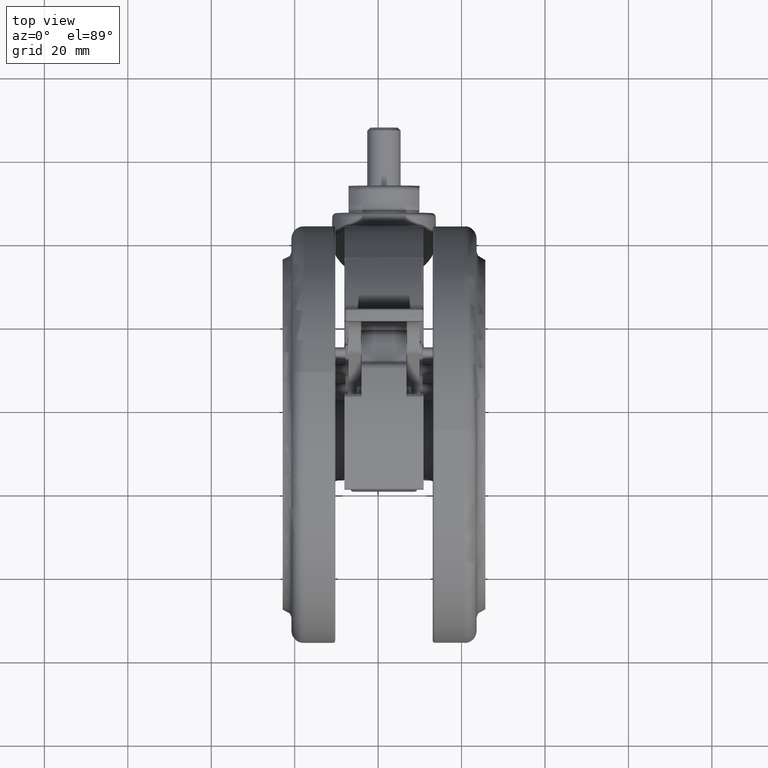
[diagram: clean part render]
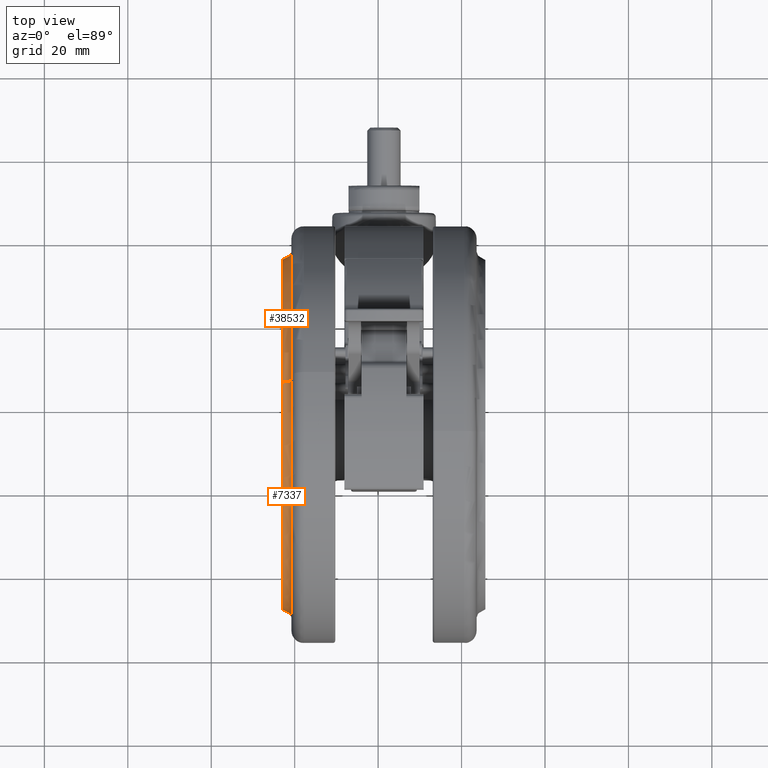
[diagram: same view with one multi-face feature highlighted, each face labeled with its STEP entity id]
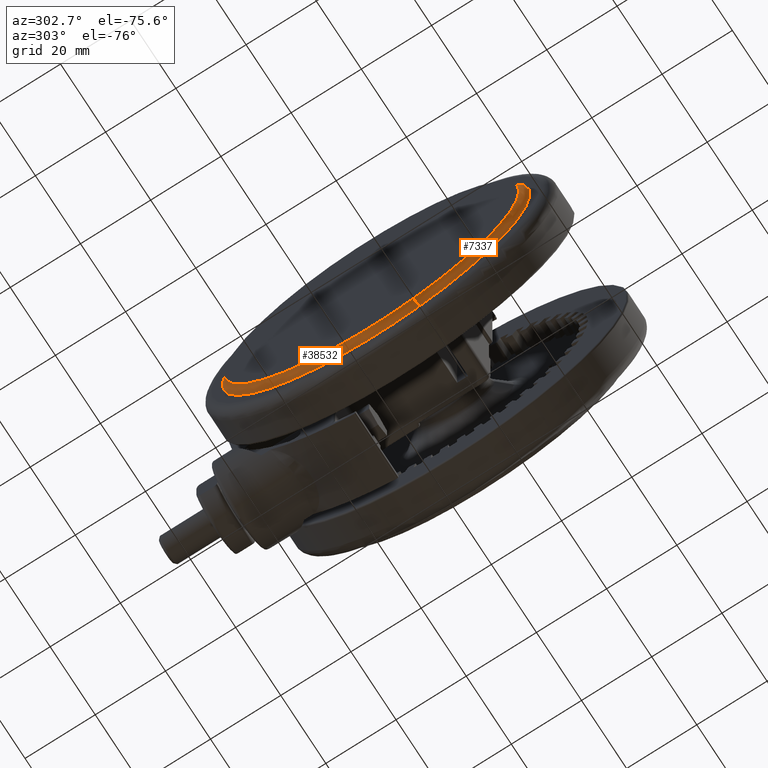
[diagram: same view with one multi-face feature highlighted, each face labeled with its STEP entity id]
A machine part, top view. The highlighted faces form ONE feature: a constant-radius fillet chain: 2 tangent blend faces with common blend radius 2.0507 mm. The faces share edges in the B-rep.
A second angle (auxiliary view) of the same feature is appended — it is thin or edge-on in the first view.
Their STEP definitions:
[1] entity #7337 (Torus):
#326 = AXIS2_PLACEMENT_3D ( 'NONE', #10751, #37212, #14538 ) ;
#922 = DIRECTION ( 'NONE',  ( 0.9587657712597810200, -0.2841974592789973700, 3.017487239981050200E-017 ) ) ;
#1682 = CARTESIAN_POINT ( 'NONE',  ( -40.26746124717187300, 11.93608545601796900, -48.54523809523794100 ) ) ;
#2512 = AXIS2_PLACEMENT_3D ( 'NONE', #10464, #36928, #14238 ) ;
#4075 = CARTESIAN_POINT ( 'NONE',  ( 42.23363222399335400, -12.51889808123984000, -48.54523809523794100 ) ) ;
#7337 = ADVANCED_FACE ( 'NONE', ( #26326 ), #45140, .F. ) ;
#7916 = DIRECTION ( 'NONE',  ( -0.9587657712597809100, 0.2841974592789977000, 0.0000000000000000000 ) ) ;
#8022 = ORIENTED_EDGE ( 'NONE', *, *, #42979, .F. ) ;
#8320 = VERTEX_POINT ( 'NONE', #12066 ) ;
#8492 = CIRCLE ( 'NONE', #42558, 2.050731300344617900 ) ;
#9405 = EDGE_CURVE ( 'NONE', #29082, #22419, #9814, .T. ) ;
#9573 = ORIENTED_EDGE ( 'NONE', *, *, #23197, .T. ) ;
#9814 = CIRCLE ( 'NONE', #29207, 43.81162395321010900 ) ;
#10054 = VERTEX_POINT ( 'NONE', #1682 ) ;
#10464 = CARTESIAN_POINT ( 'NONE',  ( 1.851304162411314400E-018, -7.794195715109633000E-015, -48.54523809523794100 ) ) ;
#10751 = CARTESIAN_POINT ( 'NONE',  ( -42.23363222399335400, 12.51889808123982200, -48.54523809523794100 ) ) ;
#10759 = ORIENTED_EDGE ( 'NONE', *, *, #9405, .T. ) ;
#12066 = CARTESIAN_POINT ( 'NONE',  ( 40.26746124717187300, -11.93608545601798300, -48.54523809523794100 ) ) ;
#14031 = EDGE_CURVE ( 'NONE', #10054, #8320, #37833, .T. ) ;
#14238 = DIRECTION ( 'NONE',  ( 0.0000000000000000000, 1.000000000000000000, -1.652146363197072600E-016 ) ) ;
#14538 = DIRECTION ( 'NONE',  ( 0.9587657712597809100, -0.2841974592789977000, 0.0000000000000000000 ) ) ;
#15838 = CARTESIAN_POINT ( 'NONE',  ( -42.00508542959794100, 12.45115221437581200, -46.50840827257597700 ) ) ;
#18904 = CARTESIAN_POINT ( 'NONE',  ( 7.070923642777736900E-017, -7.345635376610745900E-015, -46.50840827257597700 ) ) ;
#18932 = AXIS2_PLACEMENT_3D ( 'NONE', #23590, #46105, #922 ) ;
#19894 = CARTESIAN_POINT ( 'NONE',  ( 42.00508542959794100, -12.45115221437582600, -46.50840827257597700 ) ) ;
#22419 = VERTEX_POINT ( 'NONE', #19894 ) ;
#22756 = DIRECTION ( 'NONE',  ( 0.9587657712597809100, -0.2841974592789973100, 0.0000000000000000000 ) ) ;
#23197 = EDGE_CURVE ( 'NONE', #10054, #29082, #48953, .T. ) ;
#23590 = CARTESIAN_POINT ( 'NONE',  ( 1.851304162411305900E-018, -7.794195715109633000E-015, -48.54523809523794100 ) ) ;
#26326 = FACE_OUTER_BOUND ( 'NONE', #31690, .T. ) ;
#27438 = ORIENTED_EDGE ( 'NONE', *, *, #14031, .F. ) ;
#29082 = VERTEX_POINT ( 'NONE', #15838 ) ;
#29207 = AXIS2_PLACEMENT_3D ( 'NONE', #18904, #45260, #22756 ) ;
#30585 = DIRECTION ( 'NONE',  ( 0.2841974592789973700, 0.9587657712597810200, -2.207516520505498100E-016 ) ) ;
#31690 = EDGE_LOOP ( 'NONE', ( #27438, #9573, #10759, #8022 ) ) ;
#36928 = DIRECTION ( 'NONE',  ( -3.380642383533773200E-017, -2.202247500052102700E-016, -1.000000000000000000 ) ) ;
#37212 = DIRECTION ( 'NONE',  ( -0.2841974592789972600, -0.9587657712597810200, 2.207516520505497900E-016 ) ) ;
#37833 = CIRCLE ( 'NONE', #2512, 41.99926869965538100 ) ;
#42558 = AXIS2_PLACEMENT_3D ( 'NONE', #4075, #30585, #7916 ) ;
#42979 = EDGE_CURVE ( 'NONE', #8320, #22419, #8492, .T. ) ;
#45140 = TOROIDAL_SURFACE ( 'NONE', #18932, 44.04999999999999700, 2.050731300344620100 ) ;
#45260 = DIRECTION ( 'NONE',  ( -3.380642383533773200E-017, -2.202247500052102700E-016, -1.000000000000000000 ) ) ;
#46105 = DIRECTION ( 'NONE',  ( -3.380642383533773200E-017, -2.202247500052102700E-016, -1.000000000000000000 ) ) ;
#48953 = CIRCLE ( 'NONE', #326, 2.050731300344617900 ) ;
[2] entity #38532 (Torus):
#71 = DIRECTION ( 'NONE',  ( 0.0000000000000000000, 1.000000000000000000, -1.652146363197072600E-016 ) ) ;
#326 = AXIS2_PLACEMENT_3D ( 'NONE', #10751, #37212, #14538 ) ;
#628 = EDGE_CURVE ( 'NONE', #22419, #29082, #31427, .T. ) ;
#1682 = CARTESIAN_POINT ( 'NONE',  ( -40.26746124717187300, 11.93608545601796900, -48.54523809523794100 ) ) ;
#4075 = CARTESIAN_POINT ( 'NONE',  ( 42.23363222399335400, -12.51889808123984000, -48.54523809523794100 ) ) ;
#7916 = DIRECTION ( 'NONE',  ( -0.9587657712597809100, 0.2841974592789977000, 0.0000000000000000000 ) ) ;
#8320 = VERTEX_POINT ( 'NONE', #12066 ) ;
#8492 = CIRCLE ( 'NONE', #42558, 2.050731300344617900 ) ;
#10054 = VERTEX_POINT ( 'NONE', #1682 ) ;
#10751 = CARTESIAN_POINT ( 'NONE',  ( -42.23363222399335400, 12.51889808123982200, -48.54523809523794100 ) ) ;
#10922 = FACE_OUTER_BOUND ( 'NONE', #37498, .T. ) ;
#12066 = CARTESIAN_POINT ( 'NONE',  ( 40.26746124717187300, -11.93608545601798300, -48.54523809523794100 ) ) ;
#14538 = DIRECTION ( 'NONE',  ( 0.9587657712597809100, -0.2841974592789977000, 0.0000000000000000000 ) ) ;
#14777 = CARTESIAN_POINT ( 'NONE',  ( 1.851304162411305900E-018, -7.794195715109633000E-015, -48.54523809523794100 ) ) ;
#15838 = CARTESIAN_POINT ( 'NONE',  ( -42.00508542959794100, 12.45115221437581200, -46.50840827257597700 ) ) ;
#17050 = EDGE_CURVE ( 'NONE', #8320, #10054, #35002, .T. ) ;
#18373 = AXIS2_PLACEMENT_3D ( 'NONE', #40178, #25804, #28586 ) ;
#19894 = CARTESIAN_POINT ( 'NONE',  ( 42.00508542959794100, -12.45115221437582600, -46.50840827257597700 ) ) ;
#22247 = DIRECTION ( 'NONE',  ( -3.380642383533773200E-017, -2.202247500052102700E-016, -1.000000000000000000 ) ) ;
#22419 = VERTEX_POINT ( 'NONE', #19894 ) ;
#22742 = DIRECTION ( 'NONE',  ( -3.380642383533773200E-017, -2.202247500052102700E-016, -1.000000000000000000 ) ) ;
#23197 = EDGE_CURVE ( 'NONE', #10054, #29082, #48953, .T. ) ;
#24147 = ORIENTED_EDGE ( 'NONE', *, *, #42979, .T. ) ;
#24267 = ORIENTED_EDGE ( 'NONE', *, *, #17050, .F. ) ;
#25804 = DIRECTION ( 'NONE',  ( -3.380642383533773200E-017, -2.202247500052102700E-016, -1.000000000000000000 ) ) ;
#28586 = DIRECTION ( 'NONE',  ( 0.9587657712597809100, -0.2841974592789973100, 0.0000000000000000000 ) ) ;
#29082 = VERTEX_POINT ( 'NONE', #15838 ) ;
#30585 = DIRECTION ( 'NONE',  ( 0.2841974592789973700, 0.9587657712597810200, -2.207516520505498100E-016 ) ) ;
#31063 = TOROIDAL_SURFACE ( 'NONE', #36785, 44.04999999999999700, 2.050731300344620100 ) ;
#31427 = CIRCLE ( 'NONE', #18373, 43.81162395321010900 ) ;
#35002 = CIRCLE ( 'NONE', #45910, 41.99926869965538100 ) ;
#36785 = AXIS2_PLACEMENT_3D ( 'NONE', #14777, #22247, #44930 ) ;
#37212 = DIRECTION ( 'NONE',  ( -0.2841974592789972600, -0.9587657712597810200, 2.207516520505497900E-016 ) ) ;
#37498 = EDGE_LOOP ( 'NONE', ( #24267, #24147, #42377, #40300 ) ) ;
#38532 = ADVANCED_FACE ( 'NONE', ( #10922 ), #31063, .F. ) ;
#40178 = CARTESIAN_POINT ( 'NONE',  ( 7.070923642777736900E-017, -7.345635376610745900E-015, -46.50840827257597700 ) ) ;
#40300 = ORIENTED_EDGE ( 'NONE', *, *, #23197, .F. ) ;
#42377 = ORIENTED_EDGE ( 'NONE', *, *, #628, .T. ) ;
#42558 = AXIS2_PLACEMENT_3D ( 'NONE', #4075, #30585, #7916 ) ;
#42979 = EDGE_CURVE ( 'NONE', #8320, #22419, #8492, .T. ) ;
#44930 = DIRECTION ( 'NONE',  ( 0.9587657712597810200, -0.2841974592789973700, 3.017487239981050200E-017 ) ) ;
#45244 = CARTESIAN_POINT ( 'NONE',  ( 1.851304162411314400E-018, -7.794195715109633000E-015, -48.54523809523794100 ) ) ;
#45910 = AXIS2_PLACEMENT_3D ( 'NONE', #45244, #22742, #71 ) ;
#48953 = CIRCLE ( 'NONE', #326, 2.050731300344617900 ) ;